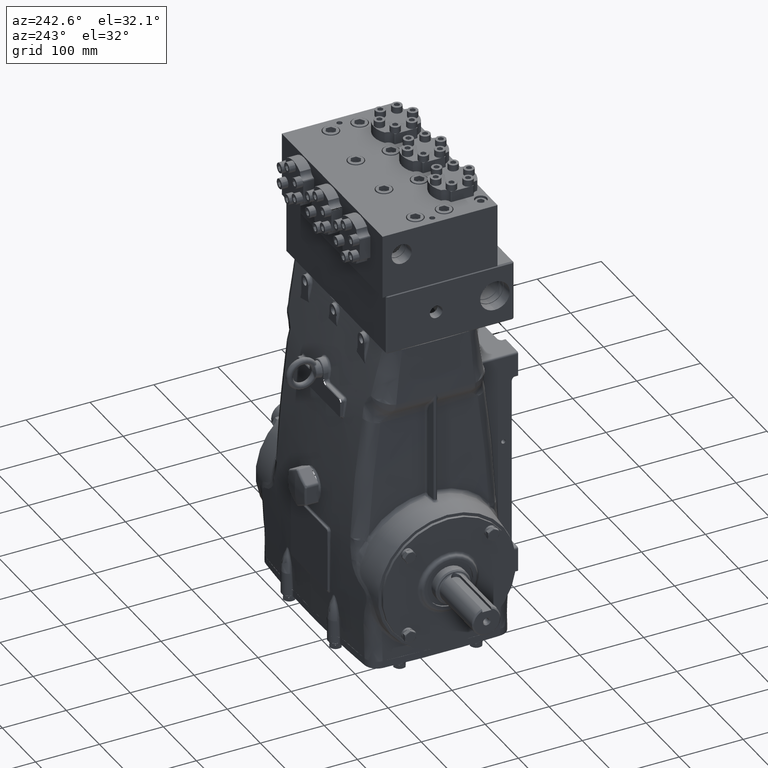
[diagram: clean part render]
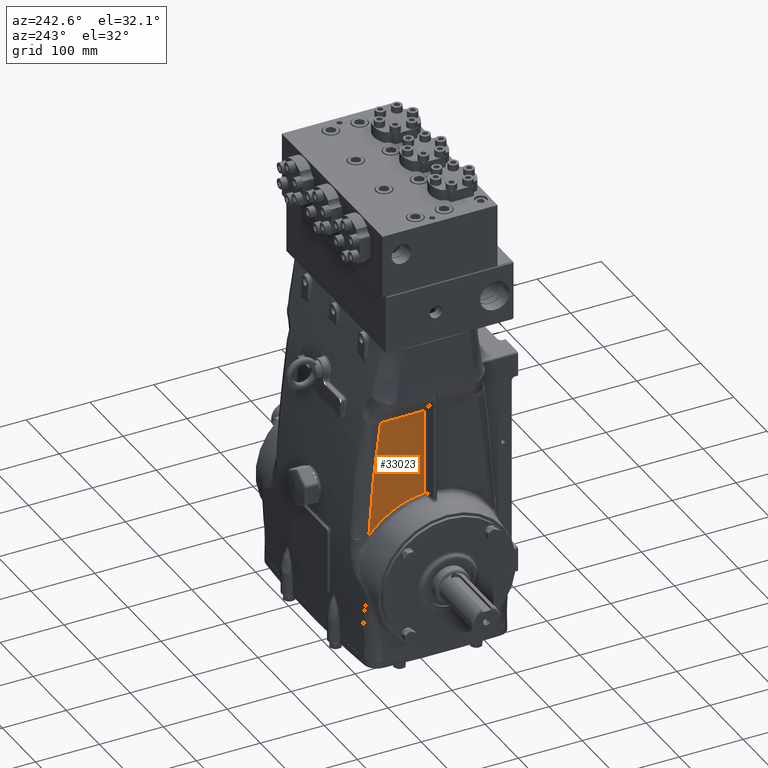
[diagram: same view with one face highlighted and labeled with its STEP entity id]
A machine part, auxiliary view. The second image highlights one B-rep face of the part: STEP entity #33023.
In plain terms, the highlighted cylindrical surface (partial cylindrical patch) has radius 1800 mm, axis along (-0, -0, -1).
Its self-contained STEP definition (entity closure, byte-faithful):
#692 = DIRECTION ( 'NONE',  ( 0.000000000000000000, 0.000000000000000000, 1.000000000000000000 ) ) ;
#3104 = CARTESIAN_POINT ( 'NONE',  ( -5.134066370949216029, 2.982545198330301961, 3.526601753037002407 ) ) ;
#3260 = EDGE_CURVE ( 'NONE', #67370, #53838, #75206, .T. ) ;
#3508 = CARTESIAN_POINT ( 'NONE',  ( -5.186027841716720488, 1.239099615835645984, 4.449937861407879502 ) ) ;
#4312 = CARTESIAN_POINT ( 'NONE',  ( -5.163946909279984787, 2.159569377603648199, 4.083076522028532551 ) ) ;
#4399 = CARTESIAN_POINT ( 'NONE',  ( -5.126399310655705754, 3.163803167604468669, 8.678993465991418077 ) ) ;
#4710 = CARTESIAN_POINT ( 'NONE',  ( -5.173437802461188895, 1.823079624495883344, 4.244761929721414084 ) ) ;
#9639 = CARTESIAN_POINT ( 'NONE',  ( -5.153450345005091471, 2.483529528583143353, 3.897836389437931093 ) ) ;
#9729 = CARTESIAN_POINT ( 'NONE',  ( -5.119705892042708761, 3.307801836055590972, 7.501154851511626198 ) ) ;
#10042 = CARTESIAN_POINT ( 'NONE',  ( -5.182441316121247255, 1.437812062171766048, 4.392713669076225180 ) ) ;
#10530 = CARTESIAN_POINT ( 'NONE',  ( -5.133642232244821635, 2.992430748585058087, 9.854556382219787025 ) ) ;
#10846 = CARTESIAN_POINT ( 'NONE',  ( -5.165061070912569718, 2.122721005268765726, 4.102356877292130832 ) ) ;
#11243 = CARTESIAN_POINT ( 'NONE',  ( -5.158282183632204365, 2.342276212665792112, 3.984331358666895806 ) ) ;
#13870 = ORIENTED_EDGE ( 'NONE', *, *, #40418, .T. ) ;
#14220 = VERTEX_POINT ( 'NONE', #42229 ) ;
#16563 = CARTESIAN_POINT ( 'NONE',  ( -5.145884492832413670, 2.688041965021509938, 3.756845677785005666 ) ) ;
#19734 = CARTESIAN_POINT ( 'NONE',  ( -5.196215436301595325, 0.2999892646748282821, 9.921154763145716871 ) ) ;
#20734 = DIRECTION ( 'NONE',  ( -1.000000000000000000, 0.000000000000000000, 0.000000000000000000 ) ) ;
#22701 = CARTESIAN_POINT ( 'NONE',  ( -5.186715126791664687, 1.199167221573782971, 4.460859209957155791 ) ) ;
#28064 = CARTESIAN_POINT ( 'NONE',  ( -5.100595904790245605, 3.692333538688699957, 2.773873022577203251 ) ) ;
#28820 = CARTESIAN_POINT ( 'NONE',  ( -5.192414754829234980, 1.197812121505188232, 9.917109593391504774 ) ) ;
#28862 = CARTESIAN_POINT ( 'NONE',  ( -5.193599279275074920, 0.7123694983489441412, 4.569202901305554398 ) ) ;
#29669 = CARTESIAN_POINT ( 'NONE',  ( -5.188652663445729729, 1.078640484905057928, 4.491523523339590263 ) ) ;
#30372 = EDGE_CURVE ( 'NONE', #53838, #14220, #48287, .T. ) ;
#33023 = ADVANCED_FACE ( 'NONE', ( #76885 ), #58478, .T. ) ;
#34614 = CARTESIAN_POINT ( 'NONE',  ( -5.171448029009245495, 1.898764853344910630, 4.211402454447656929 ) ) ;
#34707 = CARTESIAN_POINT ( 'NONE',  ( -5.100595904790245605, 3.692333538688699957, 2.773873022577203251 ) ) ;
#35019 = CARTESIAN_POINT ( 'NONE',  ( -5.196215436301595325, 0.2999892646748388847, 4.609423859630428666 ) ) ;
#39614 = CARTESIAN_POINT ( 'NONE',  ( 65.66929133858268131, 0.000000000000000000, 14.76377952755905376 ) ) ;
#39890 = ORIENTED_EDGE ( 'NONE', *, *, #30372, .T. ) ;
#40418 = EDGE_CURVE ( 'NONE', #14220, #69364, #68711, .T. ) ;
#41178 = CARTESIAN_POINT ( 'NONE',  ( -5.188027734527577373, 1.118922704172636173, 4.481654927221598861 ) ) ;
#42229 = CARTESIAN_POINT ( 'NONE',  ( -5.196215436301595325, 0.2999892646748388847, 4.609423859630428666 ) ) ;
#43034 = EDGE_CURVE ( 'NONE', #69364, #67370, #47427, .T. ) ;
#46909 = CARTESIAN_POINT ( 'NONE',  ( -5.135405336675778365, 2.950595561358938745, 3.553391707759731677 ) ) ;
#47313 = CARTESIAN_POINT ( 'NONE',  ( -5.190437362922607711, 0.9568125468879116191, 4.519646790713321316 ) ) ;
#47427 =( BOUNDED_CURVE ( )  B_SPLINE_CURVE ( 3, ( #60799, #28820, #55044, #79212 ),
 .UNSPECIFIED., .F., .T. ) 
 B_SPLINE_CURVE_WITH_KNOTS ( ( 4, 4 ),
 ( 3.145825848078843912, 3.183831735327715240 ),
 .UNSPECIFIED. ) 
 CURVE ( )  GEOMETRIC_REPRESENTATION_ITEM ( )  RATIONAL_B_SPLINE_CURVE ( ( 1.000000000000000000, 0.9998796330000968569, 0.9998796330000968569, 1.000000000000000000 ) ) 
 REPRESENTATION_ITEM ( '' )  );
#48116 = CARTESIAN_POINT ( 'NONE',  ( -5.121993250311733803, 3.266150095356461058, 3.282260924314926775 ) ) ;
#48287 = B_SPLINE_CURVE_WITH_KNOTS ( 'NONE', 3,
 ( #28064, #72720, #48116, #3104, #46909, #66983, #59638, #16563, #9639, #11243, #4312, #10846, #66182, #53082, #34614, #4710, #78048, #10042, #3508, #22701, #41178, #29669, #47313, #28862, #66588, #35019 ),
 .UNSPECIFIED., .F., .F.,
 ( 4, 2, 2, 1, 2, 2, 2, 2, 2, 2, 2, 2, 1, 4 ),
 ( 0.000000000000000000, 0.1162611963674010651, 0.1307938459133261011, 0.1453264954592511093, 0.1743917945511010981, 0.2325223927348008812, 0.2470550422807257507, 0.2615876918266506479, 0.2906529909185004423, 0.3487835891022001977, 0.3633162386481251227, 0.3778488881940500477, 0.4069141872858998421, 0.4650447854695994865 ),
 .UNSPECIFIED. ) ;
#51365 = CARTESIAN_POINT ( 'NONE',  ( -5.133642232244821635, 2.992430748585058087, 9.854556382219787025 ) ) ;
#51927 = DIRECTION ( 'NONE',  ( -0.000000000000000000, -0.000000000000000000, -1.000000000000000000 ) ) ;
#52810 = EDGE_LOOP ( 'NONE', ( #39890, #13870, #62132, #80133 ) ) ;
#53082 = CARTESIAN_POINT ( 'NONE',  ( -5.168316720175512913, 2.011152171684113643, 4.158222302034693563 ) ) ;
#53838 = VERTEX_POINT ( 'NONE', #73655 ) ;
#55044 = CARTESIAN_POINT ( 'NONE',  ( -5.171554509258466936, 2.095400656180997689, 9.894907460678753708 ) ) ;
#57951 = AXIS2_PLACEMENT_3D ( 'NONE', #39614, #51927, #20734 ) ;
#58478 = CYLINDRICAL_SURFACE ( 'NONE', #57951, 70.86614173228348079 ) ;
#59638 = CARTESIAN_POINT ( 'NONE',  ( -5.142021899834568366, 2.788456319096717984, 3.683538257506170144 ) ) ;
#60799 = CARTESIAN_POINT ( 'NONE',  ( -5.196215436301595325, 0.2999892646748282821, 9.921154763145716871 ) ) ;
#62132 = ORIENTED_EDGE ( 'NONE', *, *, #43034, .T. ) ;
#63374 = CARTESIAN_POINT ( 'NONE',  ( -5.196215436301595325, 0.2999892646748388847, 14.76377952755905376 ) ) ;
#65871 = CARTESIAN_POINT ( 'NONE',  ( -5.108419500252472822, 3.541091684542825746, 5.140926226049184145 ) ) ;
#66182 = CARTESIAN_POINT ( 'NONE',  ( -5.167248957890882011, 2.048410253062547426, 4.139980233001872456 ) ) ;
#66588 = CARTESIAN_POINT ( 'NONE',  ( -5.195514496670584847, 0.4655689161101418394, 4.598687739432099519 ) ) ;
#66983 = CARTESIAN_POINT ( 'NONE',  ( -5.138063258666185185, 2.886108172180531284, 3.606012740548780737 ) ) ;
#67370 = VERTEX_POINT ( 'NONE', #51365 ) ;
#68711 = LINE ( 'NONE', #63374, #71617 ) ;
#69364 = VERTEX_POINT ( 'NONE', #19734 ) ;
#71617 = VECTOR ( 'NONE', #692, 39.37007874015748143 ) ;
#72407 = CARTESIAN_POINT ( 'NONE',  ( -5.103826514365501943, 3.630383177930435412, 3.958536215066533082 ) ) ;
#72720 = CARTESIAN_POINT ( 'NONE',  ( -5.111034237744735087, 3.492234942791533570, 3.040399284102574207 ) ) ;
#73655 = CARTESIAN_POINT ( 'NONE',  ( -5.100595904790245605, 3.692333538688699957, 2.773873022577203251 ) ) ;
#75206 = B_SPLINE_CURVE_WITH_KNOTS ( 'NONE', 3,
 ( #10530, #4399, #9729, #65871, #72407, #34707 ),
 .UNSPECIFIED., .F., .F.,
 ( 4, 2, 4 ),
 ( 0.000000000000000000, 0.4780544275456935499, 0.9561088550913870998 ),
 .UNSPECIFIED. ) ;
#76885 = FACE_OUTER_BOUND ( 'NONE', #52810, .T. ) ;
#78048 = CARTESIAN_POINT ( 'NONE',  ( -5.179091956529217278, 1.593743480888696773, 4.338558476538027620 ) ) ;
#79212 = CARTESIAN_POINT ( 'NONE',  ( -5.133642232244821635, 2.992430748585058087, 9.854556382219787025 ) ) ;
#80133 = ORIENTED_EDGE ( 'NONE', *, *, #3260, .T. ) ;